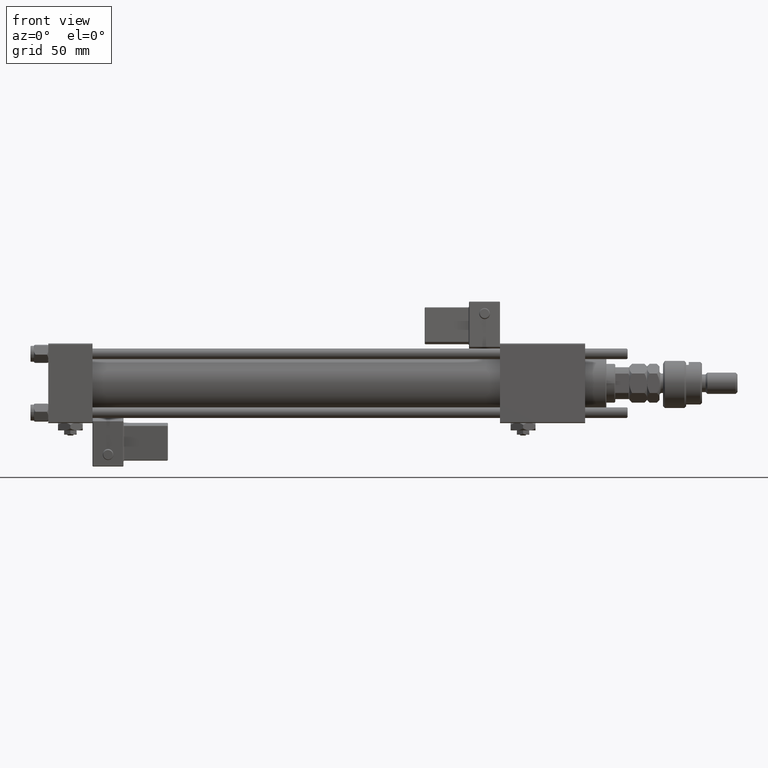
[diagram: clean part render]
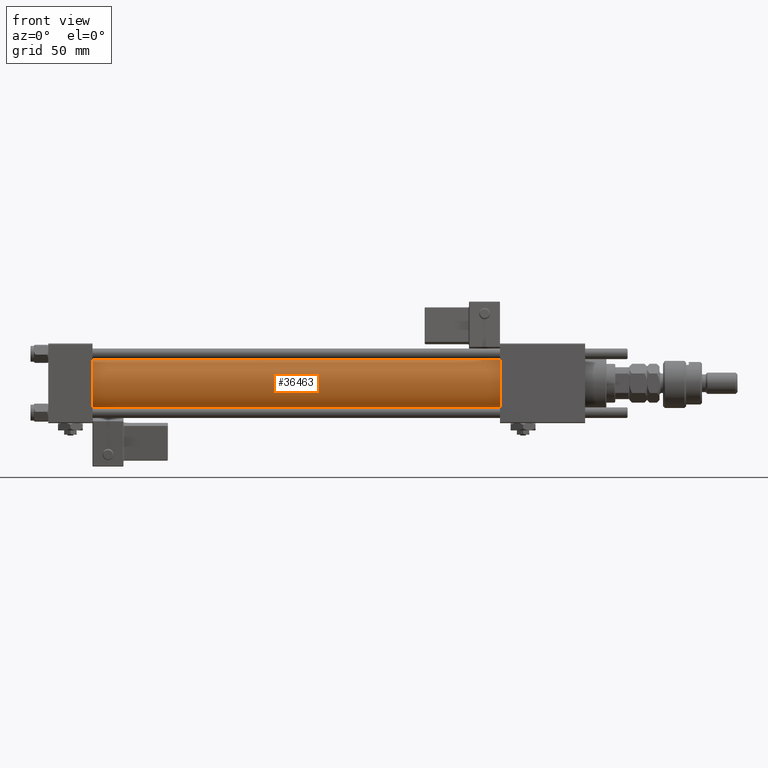
[diagram: same view with one face highlighted and labeled with its STEP entity id]
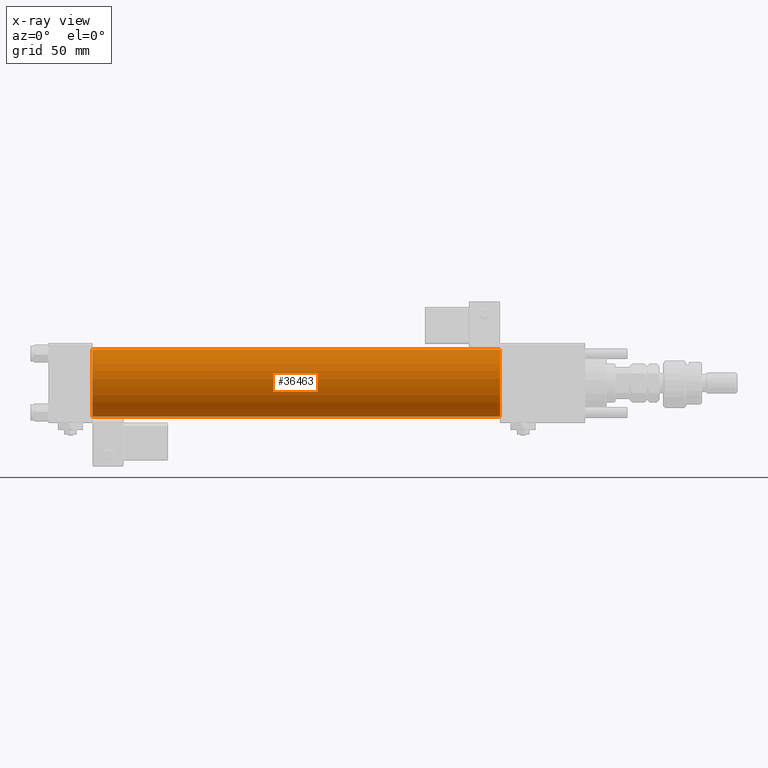
[diagram: x-ray of the same camera — body ghosted, the highlighted face saturated]
A machine part, front view. The second image highlights one B-rep face of the part: STEP entity #36463.
The next image is the same camera in x-ray: the body ghosted, the highlighted face saturated — about 0% of this face is hidden behind the body in this view.
In plain terms, the highlighted cylindrical surface (edge-blend (fillet) strip) has radius 19 mm, axis along (-1, -0, -0).
Its self-contained STEP definition (entity closure, byte-faithful):
#623 = CARTESIAN_POINT ( 'NONE',  ( 255.0000000000000000, -2.602085213965210642E-15, 0.000000000000000000 ) ) ;
#766 = ORIENTED_EDGE ( 'NONE', *, *, #36314, .T. ) ;
#2486 = AXIS2_PLACEMENT_3D ( 'NONE', #32965, #8077, #32330 ) ;
#4033 = VERTEX_POINT ( 'NONE', #29030 ) ;
#5302 = CIRCLE ( 'NONE', #19744, 19.00000000000000000 ) ;
#6365 = EDGE_CURVE ( 'NONE', #45432, #4033, #5302, .T. ) ;
#8077 = DIRECTION ( 'NONE',  ( 1.000000000000000000, 0.000000000000000000, 0.000000000000000000 ) ) ;
#9741 = CARTESIAN_POINT ( 'NONE',  ( 24.99999999999999289, -2.602085213965210642E-15, 19.00000000000000000 ) ) ;
#11437 = DIRECTION ( 'NONE',  ( 1.000000000000000000, -0.000000000000000000, 0.000000000000000000 ) ) ;
#12606 = EDGE_CURVE ( 'NONE', #22087, #62123, #38604, .T. ) ;
#12958 = ORIENTED_EDGE ( 'NONE', *, *, #12606, .F. ) ;
#16217 = DIRECTION ( 'NONE',  ( -1.000000000000000000, -0.000000000000000000, -0.000000000000000000 ) ) ;
#17392 = LINE ( 'NONE', #57140, #49173 ) ;
#19744 = AXIS2_PLACEMENT_3D ( 'NONE', #55396, #11437, #20811 ) ;
#20335 = CYLINDRICAL_SURFACE ( 'NONE', #57632, 19.00000000000000000 ) ;
#20811 = DIRECTION ( 'NONE',  ( 0.000000000000000000, 0.000000000000000000, 1.000000000000000000 ) ) ;
#22087 = VERTEX_POINT ( 'NONE', #35300 ) ;
#25504 = DIRECTION ( 'NONE',  ( 0.000000000000000000, 0.000000000000000000, 1.000000000000000000 ) ) ;
#28536 = EDGE_CURVE ( 'NONE', #62123, #4033, #17392, .T. ) ;
#29030 = CARTESIAN_POINT ( 'NONE',  ( 24.99999999999999289, -2.752562955852396712E-16, -19.00000000000000000 ) ) ;
#30158 = CARTESIAN_POINT ( 'NONE',  ( 255.0000000000000000, -2.752562955852396712E-16, -19.00000000000000000 ) ) ;
#32330 = DIRECTION ( 'NONE',  ( 0.000000000000000000, 0.000000000000000000, -1.000000000000000000 ) ) ;
#32965 = CARTESIAN_POINT ( 'NONE',  ( 255.0000000000000000, -2.602085213965210642E-15, 0.000000000000000000 ) ) ;
#35300 = CARTESIAN_POINT ( 'NONE',  ( 255.0000000000000000, -2.602085213965210642E-15, 19.00000000000000000 ) ) ;
#36314 = EDGE_CURVE ( 'NONE', #22087, #45432, #39806, .T. ) ;
#36318 = EDGE_LOOP ( 'NONE', ( #38073, #12958, #766, #53401 ) ) ;
#36463 = ADVANCED_FACE ( 'NONE', ( #60093 ), #20335, .T. ) ;
#38073 = ORIENTED_EDGE ( 'NONE', *, *, #28536, .F. ) ;
#38604 = CIRCLE ( 'NONE', #2486, 19.00000000000000000 ) ;
#39806 = LINE ( 'NONE', #59532, #42072 ) ;
#42072 = VECTOR ( 'NONE', #16217, 1000.000000000000000 ) ;
#45432 = VERTEX_POINT ( 'NONE', #9741 ) ;
#49173 = VECTOR ( 'NONE', #52274, 1000.000000000000000 ) ;
#52274 = DIRECTION ( 'NONE',  ( -1.000000000000000000, -0.000000000000000000, -0.000000000000000000 ) ) ;
#53401 = ORIENTED_EDGE ( 'NONE', *, *, #6365, .T. ) ;
#55396 = CARTESIAN_POINT ( 'NONE',  ( 24.99999999999999289, -2.602085213965210642E-15, 0.000000000000000000 ) ) ;
#57140 = CARTESIAN_POINT ( 'NONE',  ( 255.0000000000000000, -2.752562955852396712E-16, -19.00000000000000000 ) ) ;
#57632 = AXIS2_PLACEMENT_3D ( 'NONE', #623, #59770, #25504 ) ;
#59532 = CARTESIAN_POINT ( 'NONE',  ( 255.0000000000000000, -2.602085213965210642E-15, 19.00000000000000000 ) ) ;
#59770 = DIRECTION ( 'NONE',  ( -1.000000000000000000, -0.000000000000000000, -0.000000000000000000 ) ) ;
#60093 = FACE_OUTER_BOUND ( 'NONE', #36318, .T. ) ;
#62123 = VERTEX_POINT ( 'NONE', #30158 ) ;